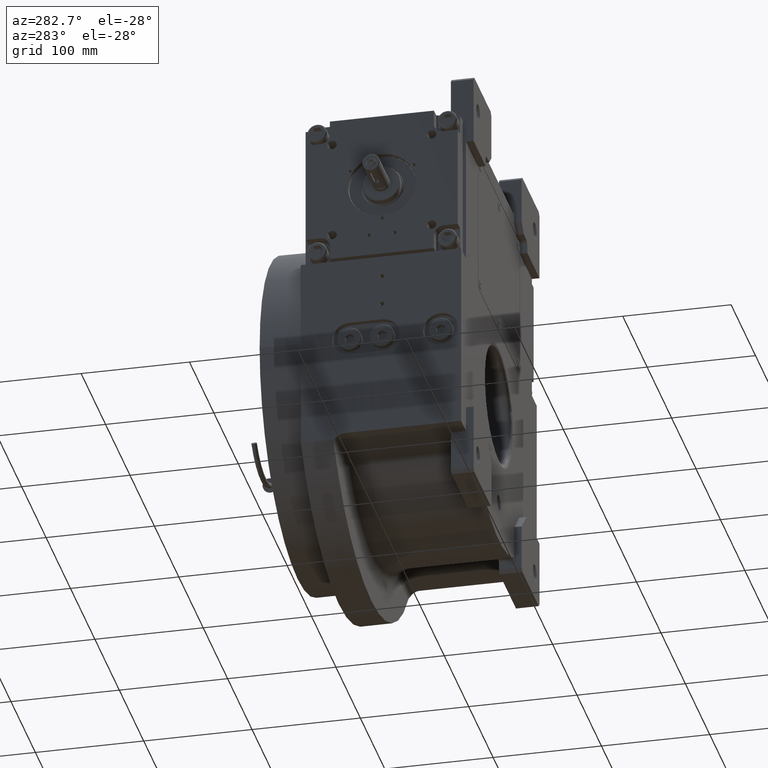
[diagram: clean part render]
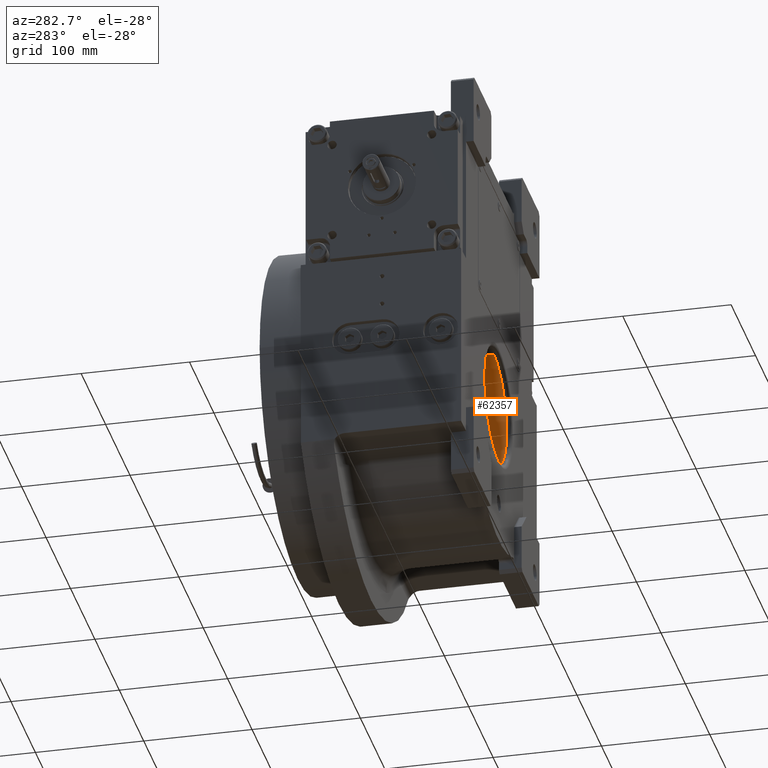
[diagram: same view with one face highlighted and labeled with its STEP entity id]
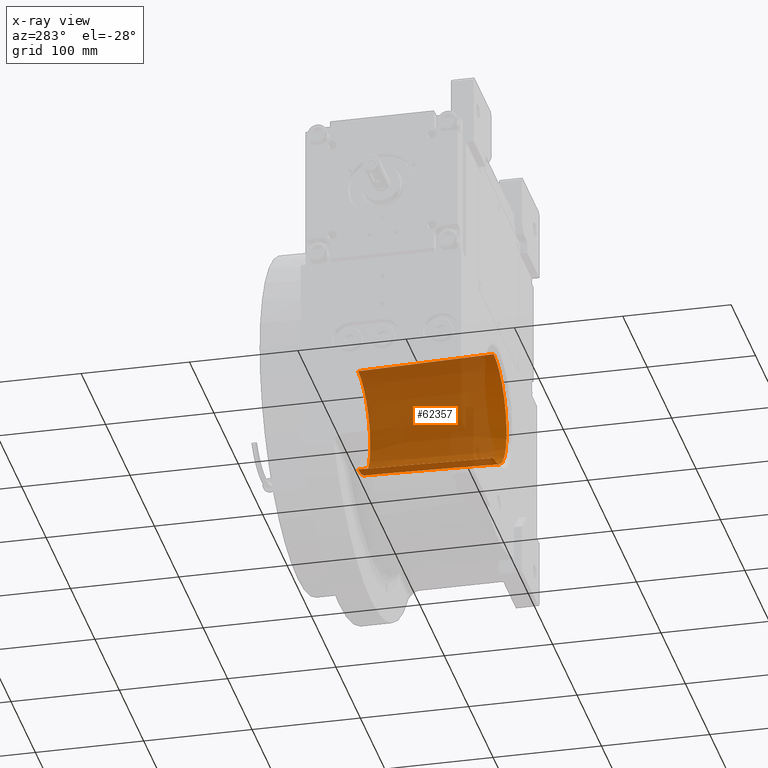
[diagram: x-ray of the same camera — body ghosted, the highlighted face saturated]
A machine part, auxiliary view. The second image highlights one B-rep face of the part: STEP entity #62357.
The next image is the same camera in x-ray: the body ghosted, the highlighted face saturated — about 89% of this face is hidden behind the body in this view.
In plain terms, the highlighted conical surface has half-angle 1.292 deg.
Its self-contained STEP definition (entity closure, byte-faithful):
#1194 = EDGE_LOOP ( 'NONE', ( #49858, #7879, #21616, #45722 ) ) ;
#1368 = CIRCLE ( 'NONE', #40620, 52.88976140256119152 ) ;
#6336 = DIRECTION ( 'NONE',  ( -1.997138262491069651E-08, 0.9999999999999997780, -6.123233971614118157E-17 ) ) ;
#7879 = ORIENTED_EDGE ( 'NONE', *, *, #68195, .T. ) ;
#10628 = CARTESIAN_POINT ( 'NONE',  ( -1.295425538949331941E-14, -68.11275327462179519, 52.88976135205919604 ) ) ;
#11612 = AXIS2_PLACEMENT_3D ( 'NONE', #57949, #67778, #58284 ) ;
#12878 = VERTEX_POINT ( 'NONE', #59736 ) ;
#13944 = DIRECTION ( 'NONE',  ( -2.761658737181604074E-18, 0.9997457016474147196, 0.02255065492437784494 ) ) ;
#14057 = FACE_OUTER_BOUND ( 'NONE', #1194, .T. ) ;
#15896 = LINE ( 'NONE', #10628, #41032 ) ;
#16050 = CONICAL_SURFACE ( 'NONE', #11612, 1.000000000000000000, 0.02255256665030591981 ) ;
#17738 = CARTESIAN_POINT ( 'NONE',  ( -5.180071170158429987E-08, -68.11275406274060629, 3.434346457190809174E-14 ) ) ;
#21616 = ORIENTED_EDGE ( 'NONE', *, *, #67015, .F. ) ;
#22303 = DIRECTION ( 'NONE',  ( 0.9882587857891660388, 2.055887273401757417E-08, -0.1527893069246760438 ) ) ;
#25578 = EDGE_CURVE ( 'NONE', #32240, #32071, #1368, .T. ) ;
#26465 = CARTESIAN_POINT ( 'NONE',  ( -3.366447261396295104E-11, -68.11275327462200835, 52.88976135205919604 ) ) ;
#27052 = DIRECTION ( 'NONE',  ( 0.9817544671349441865, 1.960699413717118186E-08, -0.1901530074981230556 ) ) ;
#27721 = CARTESIAN_POINT ( 'NONE',  ( -5.647091595521470526E-12, 57.06765196477320501, 50.06614318876450653 ) ) ;
#32071 = VERTEX_POINT ( 'NONE', #68304 ) ;
#32240 = VERTEX_POINT ( 'NONE', #26465 ) ;
#37596 = CARTESIAN_POINT ( 'NONE',  ( -3.083077640091004570E-08, 57.06765196477320501, 2.539432025222259547E-15 ) ) ;
#39137 = DIRECTION ( 'NONE',  ( -2.310691404686089221E-08, 0.9999999999999997780, -1.490116125507999888E-08 ) ) ;
#39572 = LINE ( 'NONE', #66997, #42199 ) ;
#40620 = AXIS2_PLACEMENT_3D ( 'NONE', #17738, #39137, #22303 ) ;
#41032 = VECTOR ( 'NONE', #50207, 1000.000000000000114 ) ;
#42199 = VECTOR ( 'NONE', #13944, 1000.000000000000114 ) ;
#45722 = ORIENTED_EDGE ( 'NONE', *, *, #25578, .F. ) ;
#49858 = ORIENTED_EDGE ( 'NONE', *, *, #56313, .T. ) ;
#50185 = AXIS2_PLACEMENT_3D ( 'NONE', #37596, #6336, #27052 ) ;
#50207 = DIRECTION ( 'NONE',  ( 5.523317474363207377E-18, 0.9997457016474147196, -0.02255065492437819882 ) ) ;
#56313 = EDGE_CURVE ( 'NONE', #32240, #58885, #15896, .T. ) ;
#57949 = CARTESIAN_POINT ( 'NONE',  ( 0.000000000000000000, 2232.333333333314840, -3.962844522719785252E-13 ) ) ;
#58284 = DIRECTION ( 'NONE',  ( 0.000000000000000000, 0.000000000000000000, 1.000000000000000000 ) ) ;
#58885 = VERTEX_POINT ( 'NONE', #27721 ) ;
#59736 = CARTESIAN_POINT ( 'NONE',  ( 5.632922360699180090E-12, 57.06765196477320501, -50.06614318876450653 ) ) ;
#62357 = ADVANCED_FACE ( 'NONE', ( #14057 ), #16050, .F. ) ;
#66997 = CARTESIAN_POINT ( 'NONE',  ( 6.477127694746659705E-15, -68.11275327462179519, -52.88976135205919604 ) ) ;
#67015 = EDGE_CURVE ( 'NONE', #32071, #12878, #39572, .T. ) ;
#67778 = DIRECTION ( 'NONE',  ( 0.000000000000000000, -1.000000000000000000, 1.836909530733564901E-16 ) ) ;
#68195 = EDGE_CURVE ( 'NONE', #58885, #12878, #69228, .T. ) ;
#68304 = CARTESIAN_POINT ( 'NONE',  ( 3.366158563859759886E-11, -68.11275327462200835, -52.88976135205919604 ) ) ;
#69228 = CIRCLE ( 'NONE', #50185, 50.06614321695208503 ) ;